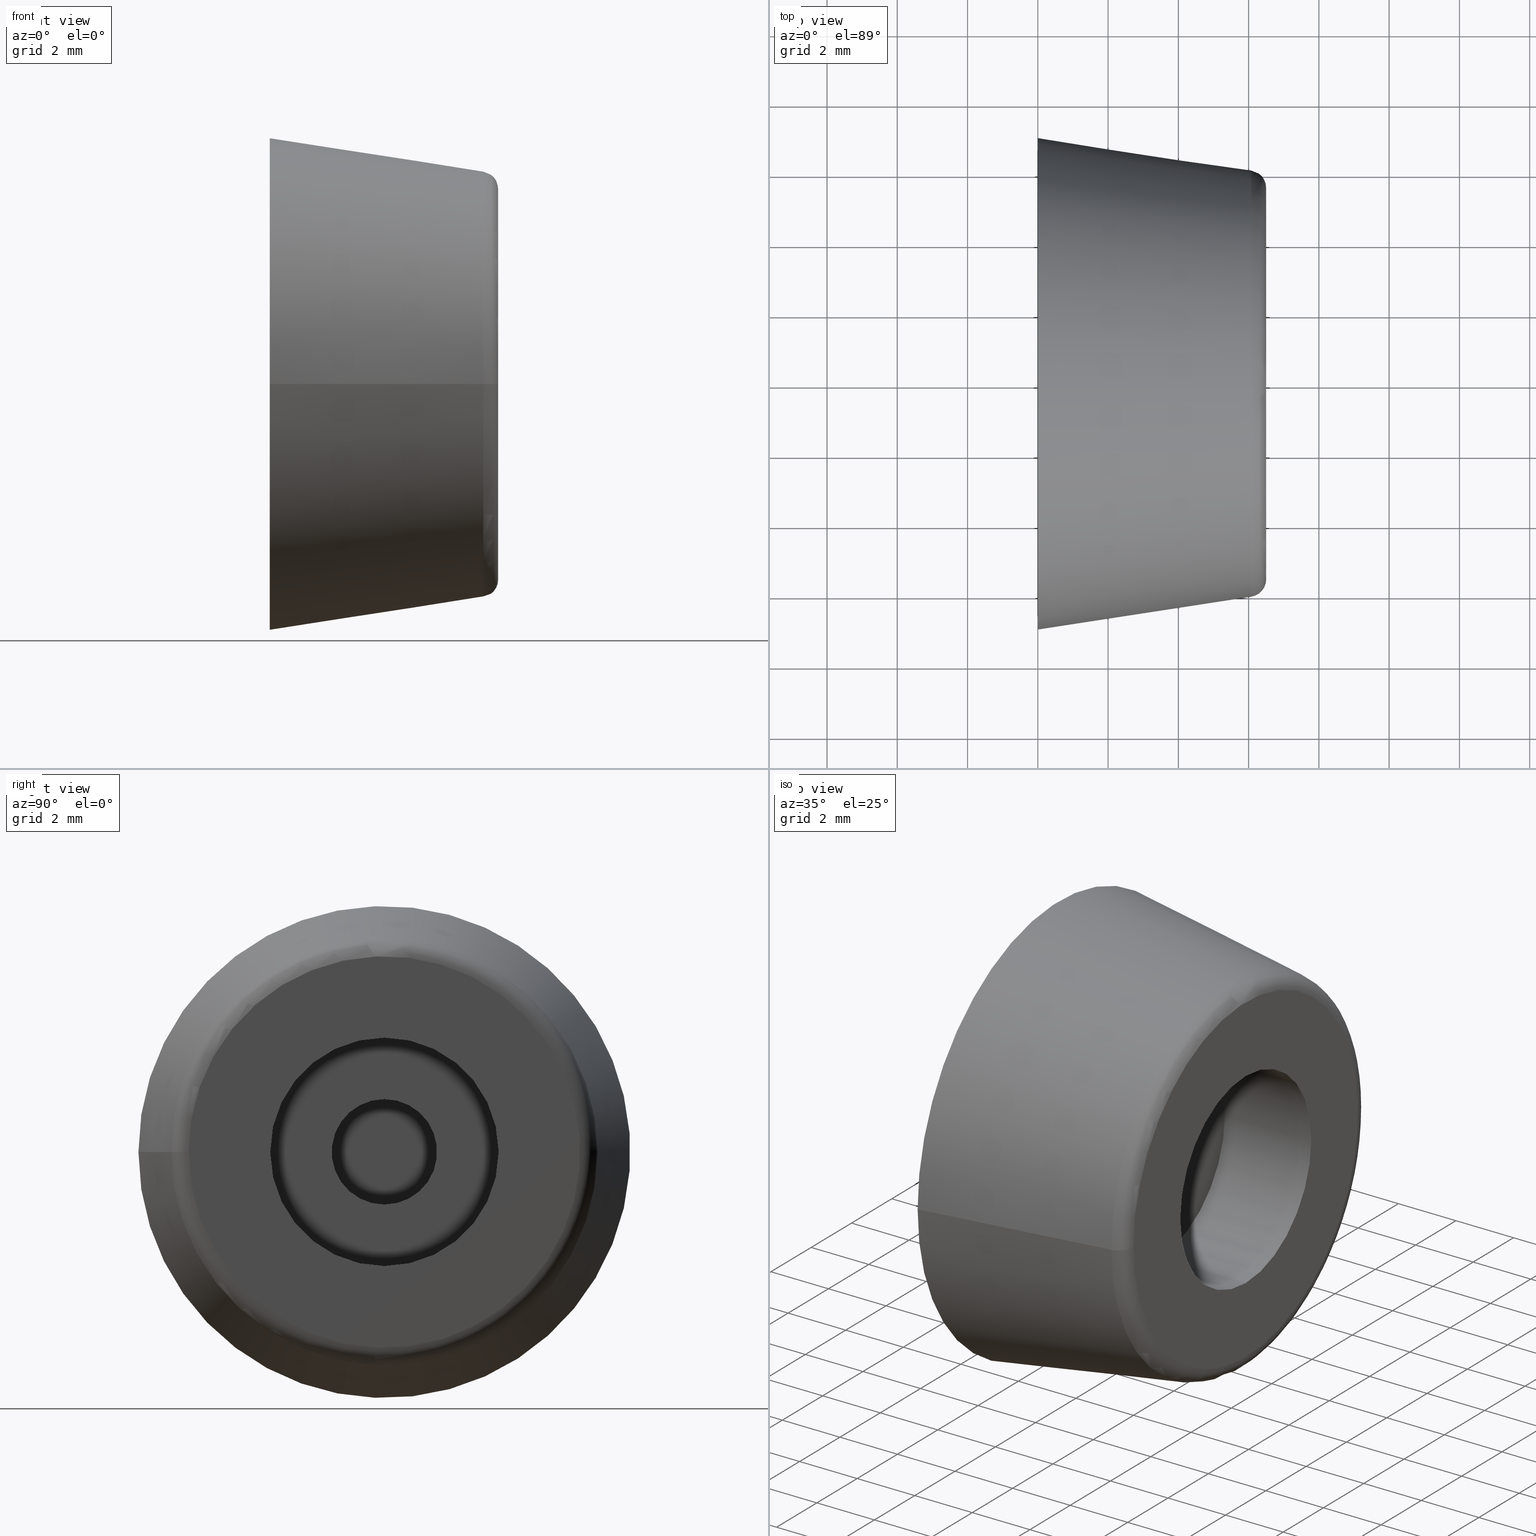
[diagram: canonical four-view strip — front | top / right | iso, engineering-drawing reading convention]
A machine part, canonical four-view strip (front | top / right | iso — engineering-drawing reading convention). The complete STEP part file that produces these views, byte-faithful:
ISO-10303-21;
HEADER;
/* Generated by software containing ST-Developer
 * from STEP Tools, Inc. (www.steptools.com) 
 */

FILE_DESCRIPTION(
/* description */ (''),
/* implementation_level */ '2;1');

FILE_NAME(
/* name */ '\\\\SYNOLOGYNAS\\web\\db2\\PR10-3\\DR_PR10-3.stp',
/* time_stamp */ '2022-12-27T13:57:44+09:00',
/* author */ ('user'),
/* organization */ (''),
/* preprocessor_version */ 'ST-DEVELOPER v15.6',
/* originating_system */ 'Autodesk Inventor 2015',
/* authorisation */ '');

FILE_SCHEMA (('AUTOMOTIVE_DESIGN { 1 0 10303 214 3 1 1 }'));
ENDSEC;

DATA;
#10=MECHANICAL_DESIGN_GEOMETRIC_PRESENTATION_REPRESENTATION('',(#13),#169);
#11=SHAPE_REPRESENTATION_RELATIONSHIP('SRR','None',#178,#12);
#12=ADVANCED_BREP_SHAPE_REPRESENTATION($,(#14),#168);
#13=STYLED_ITEM('',(#187),#14);
#14=MANIFOLD_SOLID_BREP('\X2\C194B9ACB4DC\X0\1',#94);
#15=CYLINDRICAL_SURFACE('',#103,1.5);
#16=CYLINDRICAL_SURFACE('',#107,3.25);
#17=CONICAL_SURFACE('',#101,7.,8.74616226255521);
#18=PLANE('',#99);
#19=PLANE('',#106);
#20=PLANE('',#109);
#21=PLANE('',#110);
#22=FACE_BOUND('',#37,.T.);
#23=FACE_BOUND('',#39,.T.);
#24=FACE_BOUND('',#41,.T.);
#25=FACE_BOUND('',#43,.T.);
#26=FACE_BOUND('',#46,.T.);
#27=FACE_BOUND('',#48,.T.);
#28=FACE_OUTER_BOUND('',#36,.T.);
#29=FACE_OUTER_BOUND('',#38,.T.);
#30=FACE_OUTER_BOUND('',#40,.T.);
#31=FACE_OUTER_BOUND('',#42,.T.);
#32=FACE_OUTER_BOUND('',#44,.T.);
#33=FACE_OUTER_BOUND('',#45,.T.);
#34=FACE_OUTER_BOUND('',#47,.T.);
#35=FACE_OUTER_BOUND('',#49,.T.);
#36=EDGE_LOOP('',(#71));
#37=EDGE_LOOP('',(#72));
#38=EDGE_LOOP('',(#73));
#39=EDGE_LOOP('',(#74));
#40=EDGE_LOOP('',(#75));
#41=EDGE_LOOP('',(#76));
#42=EDGE_LOOP('',(#77));
#43=EDGE_LOOP('',(#78));
#44=EDGE_LOOP('',(#79));
#45=EDGE_LOOP('',(#80));
#46=EDGE_LOOP('',(#81));
#47=EDGE_LOOP('',(#82));
#48=EDGE_LOOP('',(#83));
#49=EDGE_LOOP('',(#84));
#50=CIRCLE('',#97,5.5710405216167);
#51=CIRCLE('',#98,6.06522637044201);
#52=CIRCLE('',#100,3.25);
#53=CIRCLE('',#102,7.);
#54=CIRCLE('',#104,1.5);
#55=CIRCLE('',#105,1.5);
#56=CIRCLE('',#108,3.25);
#57=VERTEX_POINT('',#145);
#58=VERTEX_POINT('',#147);
#59=VERTEX_POINT('',#150);
#60=VERTEX_POINT('',#153);
#61=VERTEX_POINT('',#156);
#62=VERTEX_POINT('',#158);
#63=VERTEX_POINT('',#162);
#64=EDGE_CURVE('',#57,#57,#50,.T.);
#65=EDGE_CURVE('',#58,#58,#51,.T.);
#66=EDGE_CURVE('',#59,#59,#52,.T.);
#67=EDGE_CURVE('',#60,#60,#53,.T.);
#68=EDGE_CURVE('',#61,#61,#54,.T.);
#69=EDGE_CURVE('',#62,#62,#55,.T.);
#70=EDGE_CURVE('',#63,#63,#56,.T.);
#71=ORIENTED_EDGE('',*,*,#64,.T.);
#72=ORIENTED_EDGE('',*,*,#65,.T.);
#73=ORIENTED_EDGE('',*,*,#64,.F.);
#74=ORIENTED_EDGE('',*,*,#66,.T.);
#75=ORIENTED_EDGE('',*,*,#67,.T.);
#76=ORIENTED_EDGE('',*,*,#65,.F.);
#77=ORIENTED_EDGE('',*,*,#68,.T.);
#78=ORIENTED_EDGE('',*,*,#69,.F.);
#79=ORIENTED_EDGE('',*,*,#68,.F.);
#80=ORIENTED_EDGE('',*,*,#70,.T.);
#81=ORIENTED_EDGE('',*,*,#66,.F.);
#82=ORIENTED_EDGE('',*,*,#70,.F.);
#83=ORIENTED_EDGE('',*,*,#69,.T.);
#84=ORIENTED_EDGE('',*,*,#67,.F.);
#85=TOROIDAL_SURFACE('',#96,5.5710405216167,0.5);
#86=ADVANCED_FACE('',(#28,#22),#85,.T.);
#87=ADVANCED_FACE('',(#29,#23),#18,.F.);
#88=ADVANCED_FACE('',(#30,#24),#17,.T.);
#89=ADVANCED_FACE('',(#31,#25),#15,.F.);
#90=ADVANCED_FACE('',(#32),#19,.T.);
#91=ADVANCED_FACE('',(#33,#26),#16,.F.);
#92=ADVANCED_FACE('',(#34,#27),#20,.T.);
#93=ADVANCED_FACE('',(#35),#21,.F.);
#94=CLOSED_SHELL('',(#86,#87,#88,#89,#90,#91,#92,#93));
#95=AXIS2_PLACEMENT_3D('placement',#143,#111,#112);
#96=AXIS2_PLACEMENT_3D('',#144,#113,#114);
#97=AXIS2_PLACEMENT_3D('',#146,#115,#116);
#98=AXIS2_PLACEMENT_3D('',#148,#117,#118);
#99=AXIS2_PLACEMENT_3D('',#149,#119,#120);
#100=AXIS2_PLACEMENT_3D('',#151,#121,#122);
#101=AXIS2_PLACEMENT_3D('',#152,#123,#124);
#102=AXIS2_PLACEMENT_3D('',#154,#125,#126);
#103=AXIS2_PLACEMENT_3D('',#155,#127,#128);
#104=AXIS2_PLACEMENT_3D('',#157,#129,#130);
#105=AXIS2_PLACEMENT_3D('',#159,#131,#132);
#106=AXIS2_PLACEMENT_3D('',#160,#133,#134);
#107=AXIS2_PLACEMENT_3D('',#161,#135,#136);
#108=AXIS2_PLACEMENT_3D('',#163,#137,#138);
#109=AXIS2_PLACEMENT_3D('',#164,#139,#140);
#110=AXIS2_PLACEMENT_3D('',#165,#141,#142);
#111=DIRECTION('axis',(0.,0.,1.));
#112=DIRECTION('refdir',(1.,0.,0.));
#113=DIRECTION('center_axis',(-1.,0.,0.));
#114=DIRECTION('ref_axis',(0.,0.,1.));
#115=DIRECTION('center_axis',(-1.,0.,0.));
#116=DIRECTION('ref_axis',(0.,1.,1.22464679914735E-16));
#117=DIRECTION('center_axis',(1.,0.,0.));
#118=DIRECTION('ref_axis',(0.,1.,1.22464679914735E-16));
#119=DIRECTION('center_axis',(-1.,0.,0.));
#120=DIRECTION('ref_axis',(0.,0.,1.));
#121=DIRECTION('center_axis',(-1.,0.,0.));
#122=DIRECTION('ref_axis',(0.,0.,1.));
#123=DIRECTION('center_axis',(-1.,0.,0.));
#124=DIRECTION('ref_axis',(0.,-1.,0.));
#125=DIRECTION('center_axis',(1.,0.,0.));
#126=DIRECTION('ref_axis',(0.,-1.,0.));
#127=DIRECTION('center_axis',(-1.,0.,0.));
#128=DIRECTION('ref_axis',(0.,0.,1.));
#129=DIRECTION('center_axis',(-1.,0.,0.));
#130=DIRECTION('ref_axis',(0.,0.,1.));
#131=DIRECTION('center_axis',(-1.,0.,0.));
#132=DIRECTION('ref_axis',(0.,0.,1.));
#133=DIRECTION('center_axis',(1.,0.,0.));
#134=DIRECTION('ref_axis',(0.,0.,-1.));
#135=DIRECTION('center_axis',(-1.,0.,0.));
#136=DIRECTION('ref_axis',(0.,0.,1.));
#137=DIRECTION('center_axis',(-1.,0.,0.));
#138=DIRECTION('ref_axis',(0.,0.,1.));
#139=DIRECTION('center_axis',(1.,0.,0.));
#140=DIRECTION('ref_axis',(0.,0.,-1.));
#141=DIRECTION('center_axis',(1.,0.,0.));
#142=DIRECTION('ref_axis',(0.,0.,-1.));
#143=CARTESIAN_POINT('',(0.,0.,0.));
#144=CARTESIAN_POINT('Origin',(6.,0.,0.));
#145=CARTESIAN_POINT('',(6.5,-5.5710405216167,0.));
#146=CARTESIAN_POINT('Origin',(6.5,0.,0.));
#147=CARTESIAN_POINT('',(6.07602859212697,-6.06522637044201,-1.48555201213318E-15));
#148=CARTESIAN_POINT('Origin',(6.07602859212697,0.,0.));
#149=CARTESIAN_POINT('Origin',(6.5,0.,0.));
#150=CARTESIAN_POINT('',(6.5,3.9801020972289E-16,-3.25));
#151=CARTESIAN_POINT('Origin',(6.5,0.,0.));
#152=CARTESIAN_POINT('Origin',(0.,0.,0.));
#153=CARTESIAN_POINT('',(0.,-7.,0.));
#154=CARTESIAN_POINT('Origin',(0.,0.,0.));
#155=CARTESIAN_POINT('Origin',(3.5,0.,0.));
#156=CARTESIAN_POINT('',(0.2,1.83697019872103E-16,-1.5));
#157=CARTESIAN_POINT('Origin',(0.2,0.,0.));
#158=CARTESIAN_POINT('',(3.5,1.83697019872103E-16,-1.5));
#159=CARTESIAN_POINT('Origin',(3.5,0.,0.));
#160=CARTESIAN_POINT('Origin',(0.2,-3.85494105772624E-17,9.24069061438667E-17));
#161=CARTESIAN_POINT('Origin',(6.5,0.,0.));
#162=CARTESIAN_POINT('',(3.5,3.9801020972289E-16,-3.25));
#163=CARTESIAN_POINT('Origin',(3.5,0.,0.));
#164=CARTESIAN_POINT('Origin',(3.5,0.,3.31675174769075E-17));
#165=CARTESIAN_POINT('Origin',(0.,0.,0.));
#166=UNCERTAINTY_MEASURE_WITH_UNIT(LENGTH_MEASURE(0.01),#170,
'DISTANCE_ACCURACY_VALUE',
'Maximum model space distance between geometric entities at asserted c
onnectivities');
#167=UNCERTAINTY_MEASURE_WITH_UNIT(LENGTH_MEASURE(1.E-6),#170,
'DISTANCE_ACCURACY_VALUE',
'Maximum model space distance between geometric entities at asserted c
onnectivities');
#168=(
GEOMETRIC_REPRESENTATION_CONTEXT(3)
GLOBAL_UNCERTAINTY_ASSIGNED_CONTEXT((#166))
GLOBAL_UNIT_ASSIGNED_CONTEXT((#170,#173,#171))
REPRESENTATION_CONTEXT('','3D')
);
#169=(
GEOMETRIC_REPRESENTATION_CONTEXT(3)
GLOBAL_UNCERTAINTY_ASSIGNED_CONTEXT((#167))
GLOBAL_UNIT_ASSIGNED_CONTEXT((#170,#173,#171))
REPRESENTATION_CONTEXT('','3D')
);
#170=(
LENGTH_UNIT()
NAMED_UNIT(*)
SI_UNIT(.MILLI.,.METRE.)
);
#171=(
NAMED_UNIT(*)
SI_UNIT($,.STERADIAN.)
SOLID_ANGLE_UNIT()
);
#172=DIMENSIONAL_EXPONENTS(0.,0.,0.,0.,0.,0.,0.);
#173=(
CONVERSION_BASED_UNIT('degree',#175)
NAMED_UNIT(#172)
PLANE_ANGLE_UNIT()
);
#174=(
NAMED_UNIT(*)
PLANE_ANGLE_UNIT()
SI_UNIT($,.RADIAN.)
);
#175=PLANE_ANGLE_MEASURE_WITH_UNIT(PLANE_ANGLE_MEASURE(0.01745329252),#174);
#176=SHAPE_DEFINITION_REPRESENTATION(#177,#178);
#177=PRODUCT_DEFINITION_SHAPE('',$,#180);
#178=SHAPE_REPRESENTATION('',(#95),#168);
#179=PRODUCT_DEFINITION_CONTEXT('part definition',#184,'design');
#180=PRODUCT_DEFINITION('DR_PR10-3','DR_PR10-3',#181,#179);
#181=PRODUCT_DEFINITION_FORMATION('',$,#186);
#182=PRODUCT_RELATED_PRODUCT_CATEGORY('DR_PR10-3','DR_PR10-3',(#186));
#183=APPLICATION_PROTOCOL_DEFINITION('international standard',
'automotive_design',2009,#184);
#184=APPLICATION_CONTEXT(
'Core Data for Automotive Mechanical Design Process');
#185=PRODUCT_CONTEXT('part definition',#184,'mechanical');
#186=PRODUCT('DR_PR10-3','DR_PR10-3',$,(#185));
#187=PRESENTATION_STYLE_ASSIGNMENT((#188));
#188=SURFACE_STYLE_USAGE(.BOTH.,#189);
#189=SURFACE_SIDE_STYLE($,(#190));
#190=SURFACE_STYLE_FILL_AREA(#191);
#191=FILL_AREA_STYLE($,(#192));
#192=FILL_AREA_STYLE_COLOUR($,#193);
#193=COLOUR_RGB('',1.,1.,1.);
ENDSEC;
END-ISO-10303-21;
